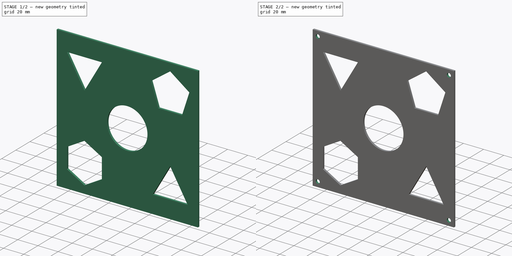
[diagram: build sequence overview — one tinted view per stage of 2, left to right]
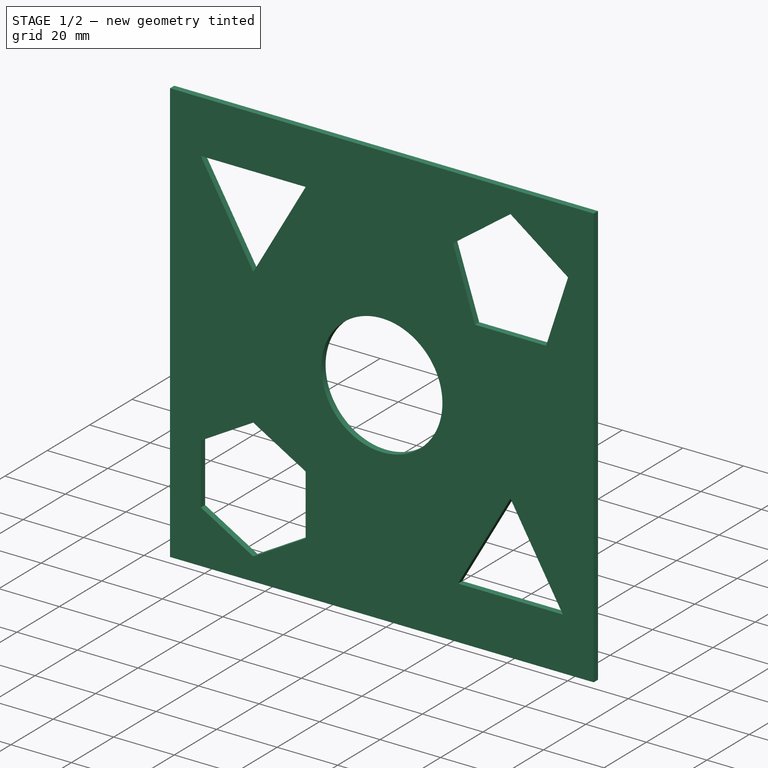
[diagram: stage 1 of 2 — iso view after this stage's code; geometry added in this stage tinted green]
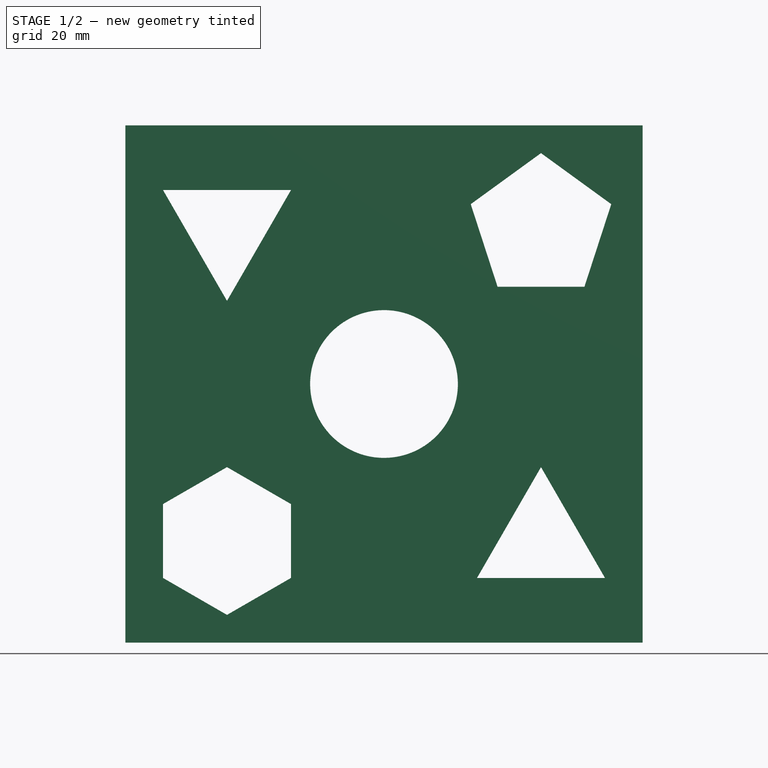
[diagram: stage 1 of 2 — front view after this stage's code; geometry added in this stage tinted green]
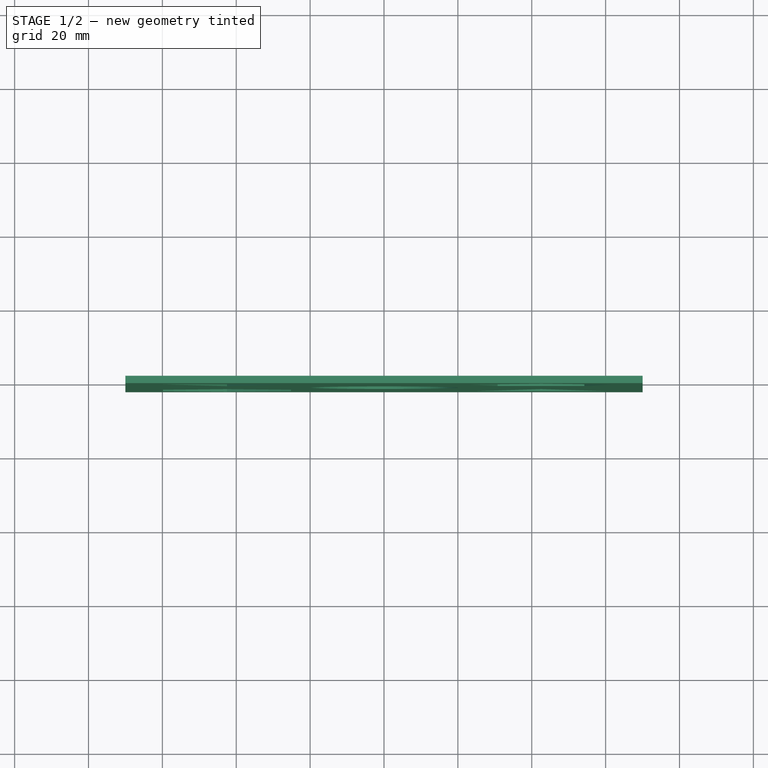
[diagram: stage 1 of 2 — top view after this stage's code; geometry added in this stage tinted green]
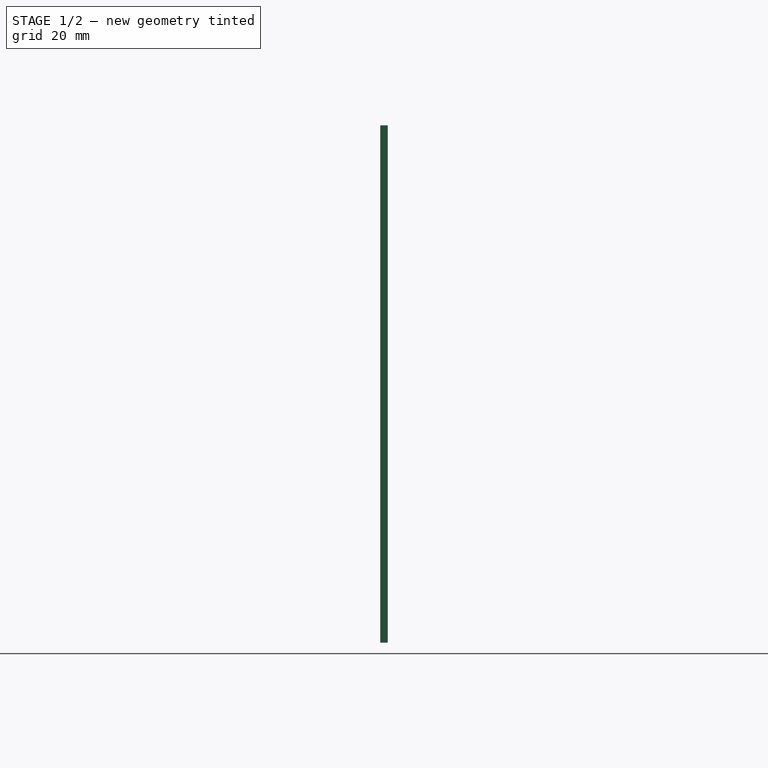
[diagram: stage 1 of 2 — right view after this stage's code; geometry added in this stage tinted green]
FCSTD DOCUMENT  (FreeCAD 2023.521R14555 (Git shallow))
Label: Demo
License: All rights reserved
objects: PartDesign::CoordinateSystem×2, Sketcher::SketchObject×2, PartDesign::Pad×1, PartDesign::Pocket×1, PartDesign::Body×1, App::Part×1
note: 13 computed .brp shape members not serialized (recipe doc carries the construction recipe); baked Part::Feature solids carry a one-line shape summary decoded from their .brp

FEATURE [PartDesign::CoordinateSystem] LCS_0
  AttacherType = Attacher::AttachEngine3D
  AttachmentSupport = -> [X_Axis]
  InvalidShape = false
  MapMode = 2
  Support = -> [X_Axis]
  TreeRank = 3
  ValidateShape = false
FEATURE [PartDesign::CoordinateSystem] LCS_0001
  AttacherType = Attacher::AttachEngine3D
  AttachmentSupport = -> [X_Axis001]
  InvalidShape = false
  MapMode = 2
  Support = -> [X_Axis001]
  TreeRank = 21
  ValidateShape = false
FEATURE [Sketcher::SketchObject] Sketch
  ArcFitTolerance = 1e-06
  AttachmentSupport = -> [XZ_Plane001]
  ExternalBSplineMaxDegree = 5
  ExternalBSplineTolerance = 0.0001
  FullyConstrained = true
  InternalTolerance = 1e-06
  InvalidShape = false
  MakeInternals = false
  MapMode = 5
  Placement = pos=(0,0,0) rot=(1,0,0;1.5708rad)
  Support = -> [XZ_Plane001]
  TreeRank = 23
  ValidateShape = false
  sketch-geometry (32):
    g0: LineSegment StartX=-42.5 StartY=22.5 StartZ=0 EndX=-25.1795 EndY=52.5 EndZ=0
    g1: LineSegment StartX=-25.1795 StartY=52.5 StartZ=0 EndX=-59.8205 EndY=52.5 EndZ=0
    g2: LineSegment StartX=-59.8205 StartY=52.5 StartZ=0 EndX=-42.5 EndY=22.5 EndZ=0
    g3: Circle [constr] CenterX=-42.5 CenterY=42.5 CenterZ=0 NormalX=0 NormalY=0 NormalZ=1 AngleXU=0 Radius=20
    g4: LineSegment StartX=42.5 StartY=-22.5 StartZ=0 EndX=25.1795 EndY=-52.5 EndZ=0
    g5: LineSegment StartX=25.1795 StartY=-52.5 StartZ=0 EndX=59.8205 EndY=-52.5 EndZ=0
    g6: LineSegment StartX=59.8205 StartY=-52.5 StartZ=0 EndX=42.5 EndY=-22.5 EndZ=0
    g7: Circle [constr] CenterX=42.5 CenterY=-42.5 CenterZ=0 NormalX=0 NormalY=0 NormalZ=1 AngleXU=0 Radius=20
    g8: Circle CenterX=0 CenterY=0 CenterZ=0 NormalX=0 NormalY=0 NormalZ=1 AngleXU=0 Radius=20
    g9: LineSegment StartX=54.2557 StartY=26.3197 StartZ=0 EndX=61.5211 EndY=48.6803 EndZ=0
    g10: LineSegment StartX=61.5211 StartY=48.6803 StartZ=0 EndX=42.5 EndY=62.5 EndZ=0
    g11: LineSegment StartX=42.5 StartY=62.5 StartZ=0 EndX=23.4789 EndY=48.6803 EndZ=0
    g12: LineSegment StartX=23.4789 StartY=48.6803 StartZ=0 EndX=30.7443 EndY=26.3197 EndZ=0
    g13: LineSegment StartX=30.7443 StartY=26.3197 StartZ=0 EndX=54.2557 EndY=26.3197 EndZ=0
    g14: Circle [constr] CenterX=42.5 CenterY=42.5 CenterZ=0 NormalX=0 NormalY=0 NormalZ=1 AngleXU=0 Radius=20
    g15: LineSegment StartX=-42.5 StartY=-22.5 StartZ=0 EndX=-59.8205 EndY=-32.5 EndZ=0
    g16: LineSegment StartX=-59.8205 StartY=-32.5 StartZ=0 EndX=-59.8205 EndY=-52.5 EndZ=0
    g17: LineSegment StartX=-59.8205 StartY=-52.5 StartZ=0 EndX=-42.5 EndY=-62.5 EndZ=0
    g18: LineSegment StartX=-42.5 StartY=-62.5 StartZ=0 EndX=-25.1795 EndY=-52.5 EndZ=0
    g19: LineSegment StartX=-25.1795 StartY=-52.5 StartZ=0 EndX=-25.1795 EndY=-32.5 EndZ=0
    g20: LineSegment StartX=-25.1795 StartY=-32.5 StartZ=0 EndX=-42.5 EndY=-22.5 EndZ=0
    g21: Circle [constr] CenterX=-42.5 CenterY=-42.5 CenterZ=0 NormalX=0 NormalY=0 NormalZ=1 AngleXU=0 Radius=20
    g22: LineSegment StartX=-70 StartY=-70 StartZ=0 EndX=-70 EndY=70 EndZ=0
    g23: LineSegment StartX=-70 StartY=70 StartZ=0 EndX=70 EndY=70 EndZ=0
    g24: LineSegment StartX=70 StartY=70 StartZ=0 EndX=70 EndY=-70 EndZ=0
    g25: LineSegment StartX=70 StartY=-70 StartZ=0 EndX=-70 EndY=-70 EndZ=0
    g26: GeomPoint [constr] X=0 Y=0 Z=0
    g27: LineSegment [constr] StartX=-42.5 StartY=-42.5 StartZ=0 EndX=-42.5 EndY=42.5 EndZ=0
    g28: LineSegment [constr] StartX=-42.5 StartY=42.5 StartZ=0 EndX=42.5 EndY=42.5 EndZ=0
    g29: LineSegment [constr] StartX=42.5 StartY=42.5 StartZ=0 EndX=42.5 EndY=-42.5 EndZ=0
    g30: LineSegment [constr] StartX=42.5 StartY=-42.5 StartZ=0 EndX=-42.5 EndY=-42.5 EndZ=0
    g31: GeomPoint [constr] X=0 Y=0 Z=0
  constraints (78):
    c: Coincident(g0,g1)
    c: Coincident(g1,g2)
    c: Coincident(g2,g0)
    c: Equal(g0,g1)
    c: Equal(g0,g2)
    c: PointOnObject(g0,g3)
    c: PointOnObject(g1,g3)
    c: PointOnObject(g2,g3)
    c: Coincident(g4,g5)
    c: Coincident(g5,g6)
    c: Coincident(g6,g4)
    c: Equal(g4,g5)
    c: Equal(g4,g6)
    c: PointOnObject(g4,g7)
    c: PointOnObject(g5,g7)
    c: PointOnObject(g6,g7)
    c: Coincident(g9,g10)
    c: Coincident(g10,g11)
    c: Coincident(g11,g12)
    c: Coincident(g12,g13)
    c: Coincident(g13,g9)
    c: Equal(g9, g10-g13) x4
    c: PointOnObject(g9,g14)
    c: PointOnObject(g10,g14)
    c: PointOnObject(g11,g14)
    c: PointOnObject(g12,g14)
    c: PointOnObject(g13,g14)
    c: Coincident(g15,g16)
    c: Coincident(g16,g17)
    c: Coincident(g17,g18)
    c: Coincident(g18,g19)
    c: Coincident(g19,g20)
    c: Coincident(g20,g15)
    c: Equal(g15, g16-g20) x5
    c: PointOnObject(g15,g21)
    c: PointOnObject(g16,g21)
    c: PointOnObject(g17,g21)
    c: PointOnObject(g18,g21)
    c: PointOnObject(g19,g21)
    c: PointOnObject(g20,g21)
    c: Coincident(g22,g23)
    c: Coincident(g23,g24)
    c: Coincident(g24,g25)
    c: Coincident(g25,g22)
    c: Horizontal(g23)
    c: Horizontal(g25)
    c: Vertical(g22)
    c: Vertical(g24)
    c: Symmetric(g23,g22,g26)
    c: Coincident(g8,g-1)
    c: Coincident(g8,g26)
    c: Equal(g7,g14)
    c: Equal(g14,g3)
    c: Equal(g3,g8)
    c: Equal(g8,g21)
    c: Equal(g24,g25)
    c: DistanceX(g25,g25) = 140
    c: Diameter(g7) = 40
    c: Horizontal(g13)
    c: Vertical(g19)
    c: Horizontal(g1)
    c: Horizontal(g5)
    c: Coincident(g27,g28)
    c: Coincident(g28,g29)
    c: Coincident(g29,g30)
    c: Coincident(g30,g27)
    c: Horizontal(g28)
    c: Horizontal(g30)
    c: Vertical(g27)
    c: Vertical(g29)
    c: Symmetric(g28,g27,g31)
    c: Coincident(g31,g8)
    c: Equal(g28,g29)
    c: DistanceX(g28,g28) = 85
    c: Coincident(g3,g27)
    c: Coincident(g21,g27)
    c: Coincident(g7,g29)
    c: Coincident(g14,g28)
FEATURE [PartDesign::Pad] Pad
  AddSubType = 0
  AlongSketchNormal = false
  AutoTaperInnerAngle = true
  CheckUpToFaceLimits = true
  ClaimChildren = false
  Direction = (0,-1,2e-16)
  Fit = 0
  FitJoin = 0
  InnerFit = 0
  InnerFitJoin = 0
  InvalidShape = false
  Length = 2
  Length2 = 10
  Linearize = true
  NewSolid = false
  Profile = -> Sketch
  ReferenceAxis = -> Sketch [N_Axis]
  Suppress = false
  TaperInnerAngle = 0
  TaperInnerAngleRev = 0
  TreeRank = 24
  Type = 0
  ValidateShape = true
  _ProfileBasedVersion = 1
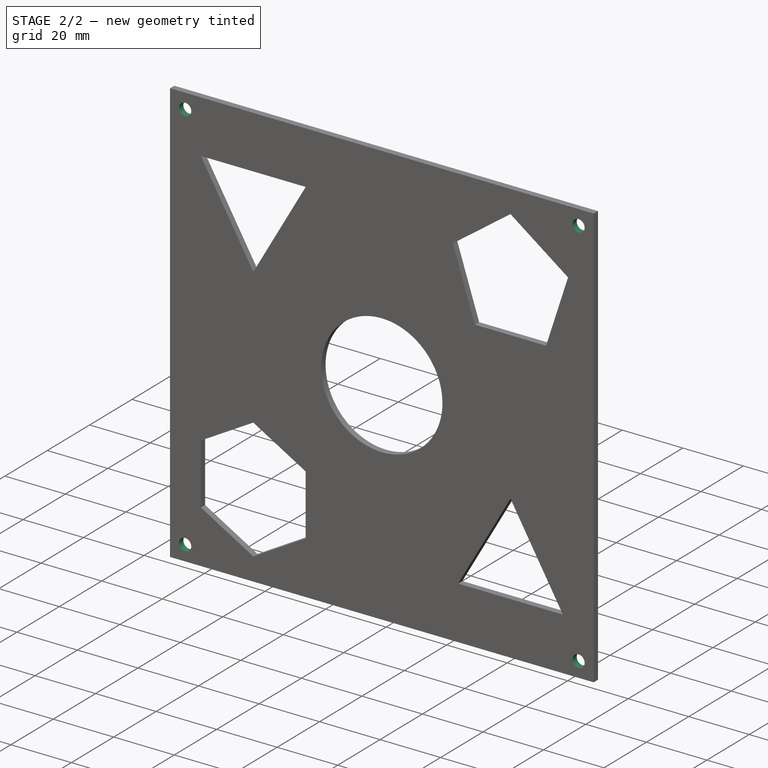
[diagram: stage 2 of 2 — iso view after this stage's code; geometry added in this stage tinted green]
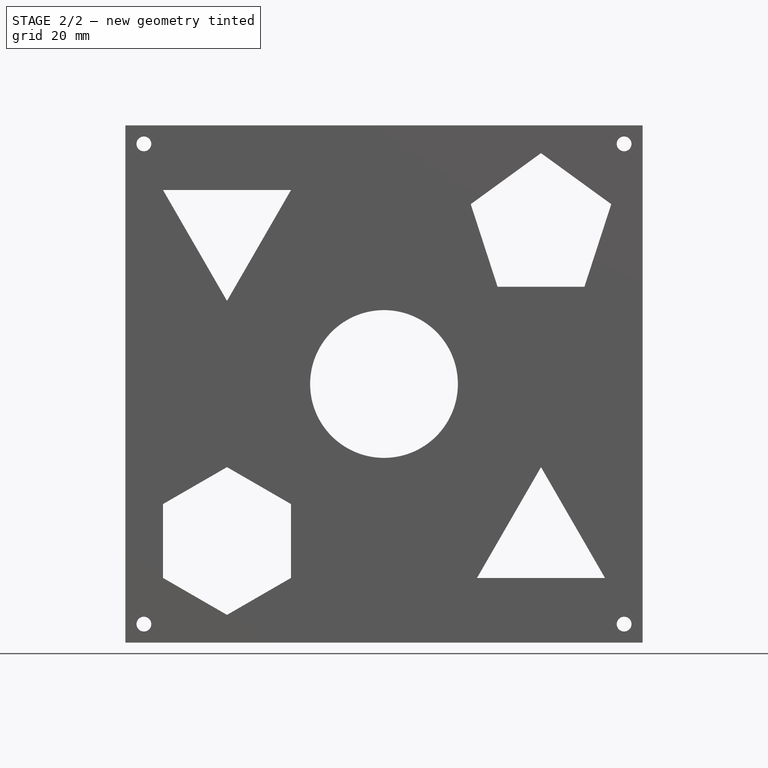
[diagram: stage 2 of 2 — front view after this stage's code; geometry added in this stage tinted green]
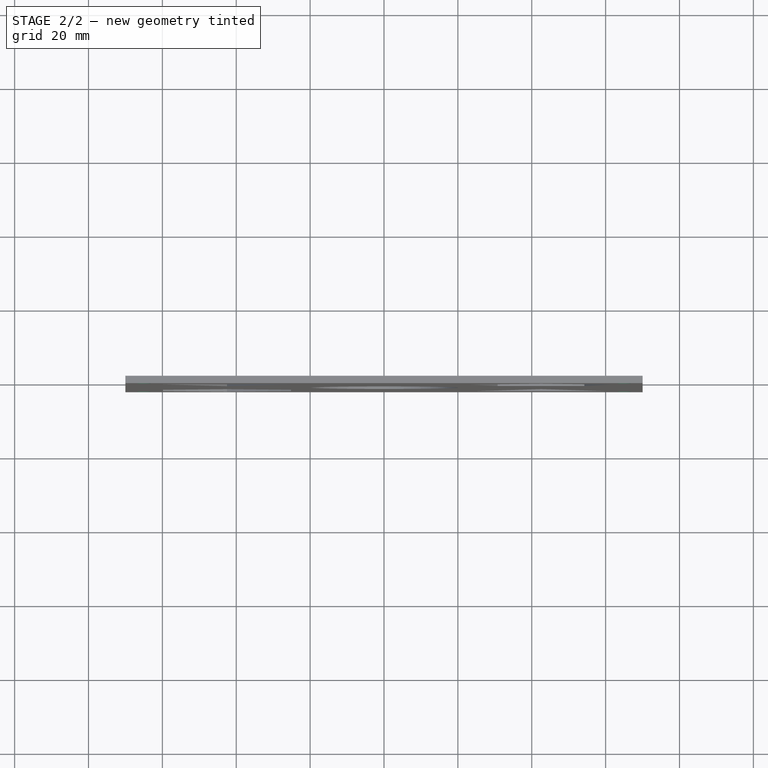
[diagram: stage 2 of 2 — top view after this stage's code; geometry added in this stage tinted green]
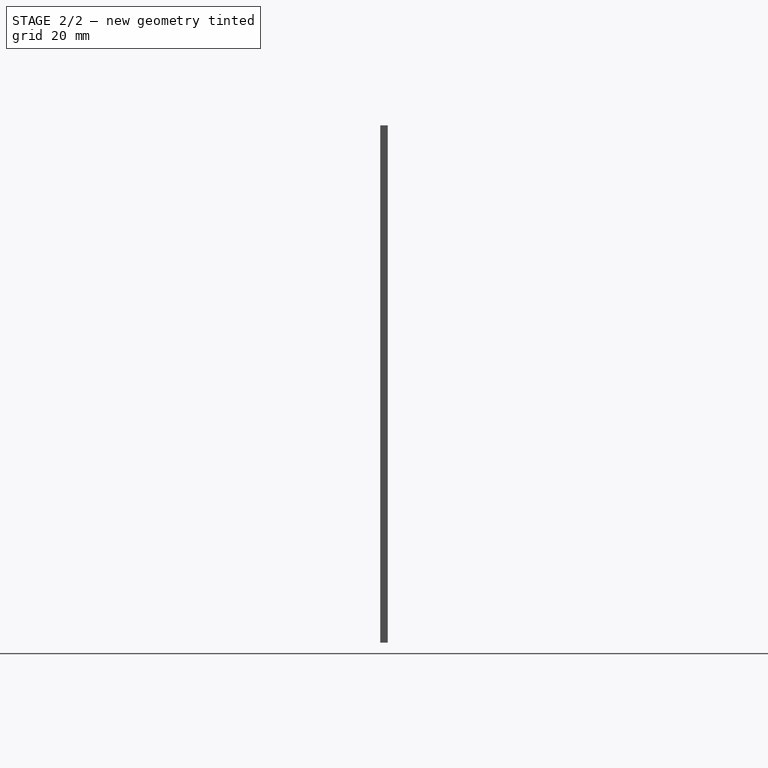
[diagram: stage 2 of 2 — right view after this stage's code; geometry added in this stage tinted green]
FEATURE [Sketcher::SketchObject] Sketch001
  ArcFitTolerance = 1e-06
  AttachmentSupport = -> [Pad]
  ExternalBSplineMaxDegree = 5
  ExternalBSplineTolerance = 0.0001
  FullyConstrained = true
  InternalTolerance = 1e-06
  InvalidShape = false
  MakeInternals = false
  MapMode = 5
  Placement = pos=(0,-2,4e-16) rot=(1,0,0;1.5708rad)
  Support = -> [Pad]
  TreeRank = 25
  ValidateShape = false
  sketch-geometry (9):
    g0: LineSegment [constr] StartX=-65 StartY=-65 StartZ=0 EndX=-65 EndY=65 EndZ=0
    g1: LineSegment [constr] StartX=-65 StartY=65 StartZ=0 EndX=65 EndY=65 EndZ=0
    g2: LineSegment [constr] StartX=65 StartY=65 StartZ=0 EndX=65 EndY=-65 EndZ=0
    g3: LineSegment [constr] StartX=65 StartY=-65 StartZ=0 EndX=-65 EndY=-65 EndZ=0
    g4: GeomPoint [constr] X=0 Y=0 Z=0
    g5: Circle CenterX=-65 CenterY=65 CenterZ=0 NormalX=0 NormalY=0 NormalZ=1 AngleXU=0 Radius=2
    g6: Circle CenterX=65 CenterY=65 CenterZ=0 NormalX=0 NormalY=0 NormalZ=1 AngleXU=0 Radius=2
    g7: Circle CenterX=65 CenterY=-65 CenterZ=0 NormalX=0 NormalY=0 NormalZ=1 AngleXU=0 Radius=2
    g8: Circle CenterX=-65 CenterY=-65 CenterZ=0 NormalX=0 NormalY=0 NormalZ=1 AngleXU=0 Radius=2
  constraints (20):
    c: Coincident(g0,g1)
    c: Coincident(g1,g2)
    c: Coincident(g2,g3)
    c: Coincident(g3,g0)
    c: Horizontal(g1)
    c: Horizontal(g3)
    c: Vertical(g0)
    c: Vertical(g2)
    c: Symmetric(g1,g0,g4)
    c: Coincident(g4,g-1)
    c: Coincident(g5,g0)
    c: Coincident(g6,g1)
    c: Coincident(g7,g2)
    c: Coincident(g8,g0)
    c: Equal(g8,g7)
    c: Equal(g7,g6)
    c: Equal(g6,g5)
    c: Diameter(g5) = 4
    c: DistanceX(g3,g3) = 130
    c: Equal(g3,g0)
FEATURE [PartDesign::Pocket] Pocket
  AddSubType = 1
  AlongSketchNormal = false
  AutoTaperInnerAngle = true
  BaseFeature = -> Pad
  CheckUpToFaceLimits = true
  ClaimChildren = false
  Direction = (0,1,-2e-16)
  Fit = 0
  FitJoin = 0
  InnerFit = 0
  InnerFitJoin = 0
  InvalidShape = false
  Length = 5
  Length2 = 10
  Linearize = true
  NewSolid = false
  Profile = -> Sketch001
  ReferenceAxis = -> Sketch001 [N_Axis]
  Suppress = false
  TaperInnerAngle = 0
  TaperInnerAngleRev = 0
  TreeRank = 26
  Type = 1
  ValidateShape = true
  _ProfileBasedVersion = 1
  _Version = 1
FEATURE [PartDesign::Body] Body
  AutoGroupSolids = false
  ClaimAllChildren = false
  ExportMode = 0
  Group = -> [LCS_0001,Sketch,Pad,Sketch001,Pocket]
  InvalidShape = false
  Origin = -> Origin001
  Tip = -> Pocket
  TreeRank = 22
  ValidateShape = false
  _ExportChildren = -> [LCS_0001,Pad,Pocket]
  _GroupVersion = 1
FEATURE [App::Part] Part
  ClaimAllChildren = false
  ExportMode = 1
  Group = -> [LCS_0,Body]
  Origin = -> Origin
  TreeRank = 11
  _ExportChildren = -> [LCS_0,Body]
  _GroupVersion = 1
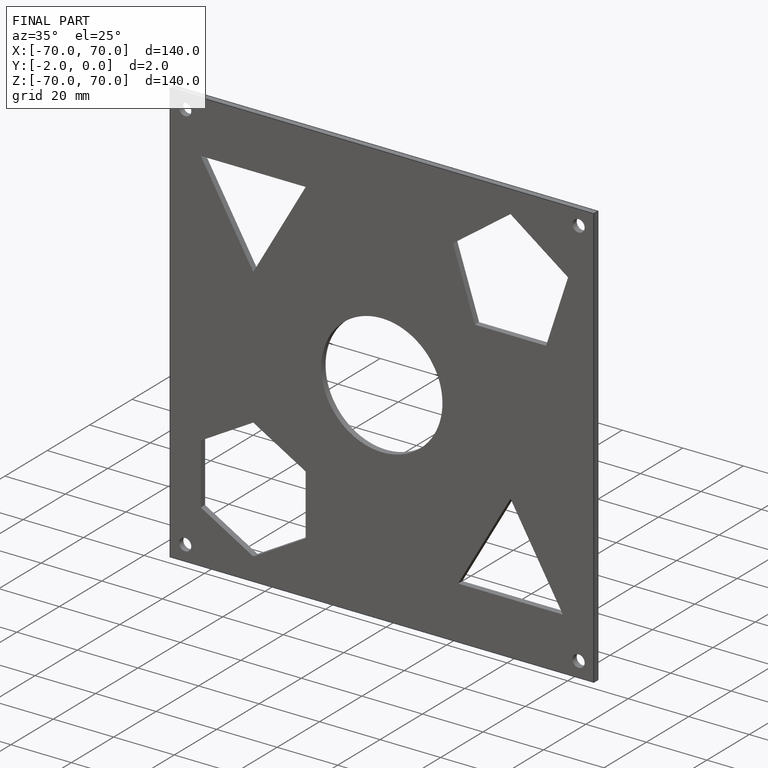
[diagram: finished part — iso view with bounding-box wireframe]
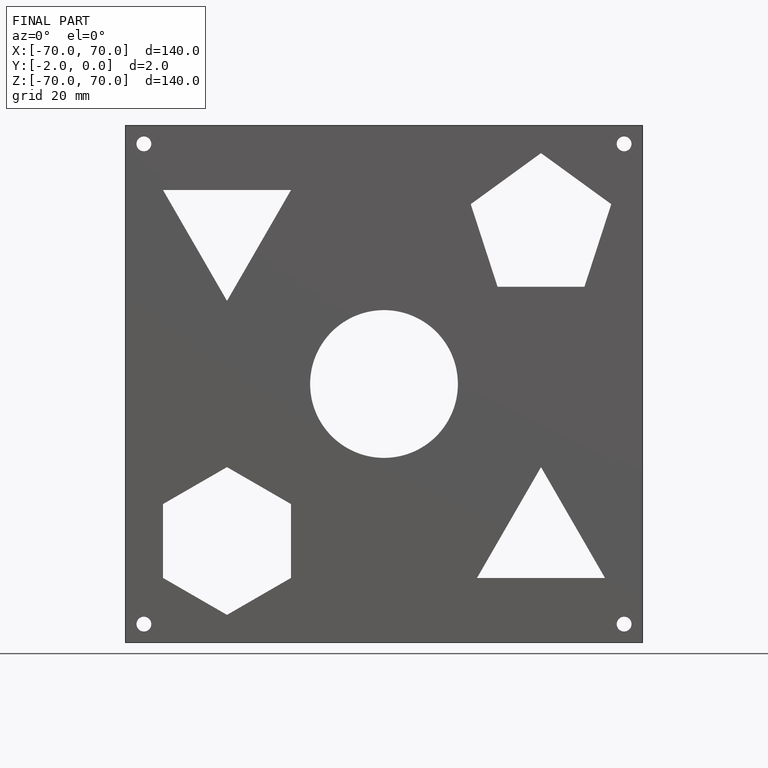
[diagram: finished part — front view with bounding-box wireframe]
